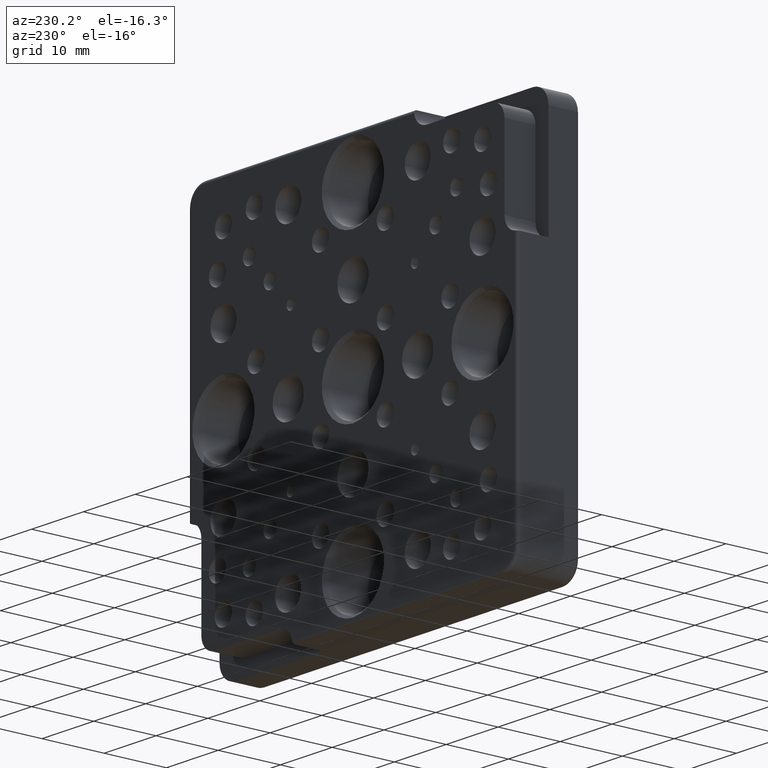
[diagram: clean part render]
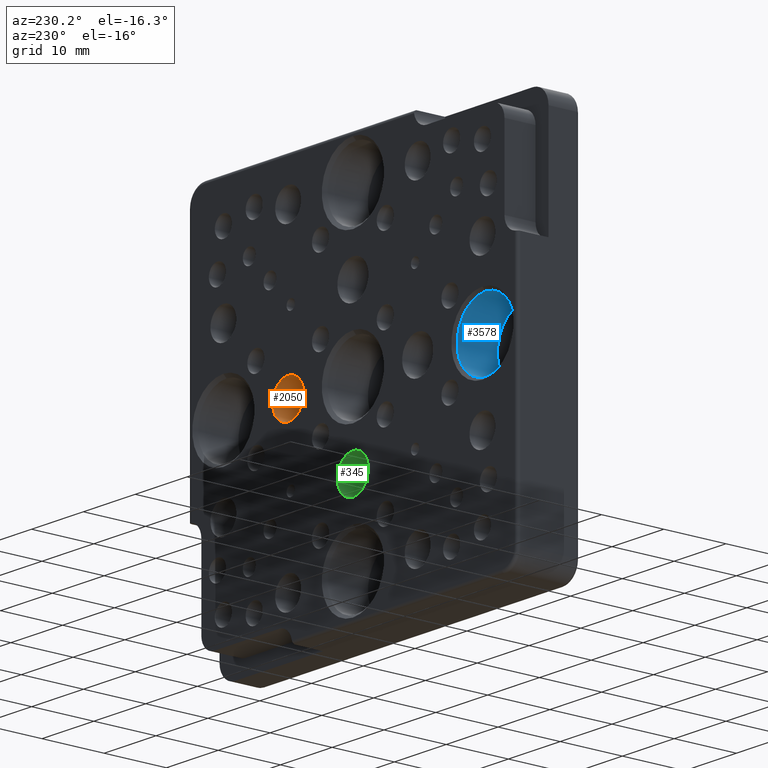
[diagram: same view with three faces highlighted in distinct colors, each labeled with its STEP entity id]
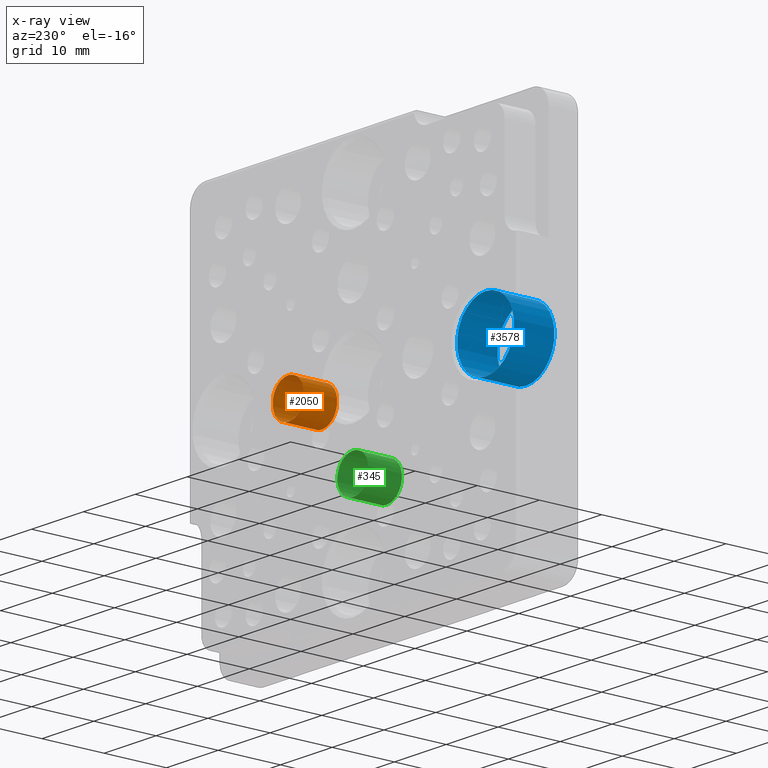
[diagram: x-ray of the same camera — body ghosted, the three highlighted faces saturated]
A machine part, auxiliary view with three faces highlighted in distinct colors.
The next image is the same camera in x-ray (body ghosted, the three faces saturated) — at least one of them is partly hidden behind the body in this view.
Their STEP definitions:

[orange] entity #2050 — the highlighted cylindrical surface (bore or boss wall) has radius 3 mm, axis along (-0, -1, -0).
#34 = AXIS2_PLACEMENT_3D ( 'NONE', #1773, #2163, #99 ) ;
#99 = DIRECTION ( 'NONE',  ( 0.000000000000000000, 0.000000000000000000, -1.000000000000000000 ) ) ;
#466 = CARTESIAN_POINT ( 'NONE',  ( 12.50000000000000355, 4.599999999999999645, 0.000000000000000000 ) ) ;
#479 = FACE_OUTER_BOUND ( 'NONE', #3254, .T. ) ;
#580 = DIRECTION ( 'NONE',  ( 0.000000000000000000, 0.000000000000000000, -1.000000000000000000 ) ) ;
#821 = EDGE_CURVE ( 'NONE', #3263, #3263, #4001, .T. ) ;
#1164 = AXIS2_PLACEMENT_3D ( 'NONE', #1911, #2218, #3260 ) ;
#1717 = VERTEX_POINT ( 'NONE', #2440 ) ;
#1735 = EDGE_LOOP ( 'NONE', ( #4113 ) ) ;
#1773 = CARTESIAN_POINT ( 'NONE',  ( 12.50000000000000355, 0.000000000000000000, 0.000000000000000000 ) ) ;
#1911 = CARTESIAN_POINT ( 'NONE',  ( 12.50000000000000355, 10.00000000000000000, 0.000000000000000000 ) ) ;
#2050 = ADVANCED_FACE ( 'NONE', ( #2811, #479 ), #3163, .F. ) ;
#2163 = DIRECTION ( 'NONE',  ( -0.000000000000000000, -1.000000000000000000, -0.000000000000000000 ) ) ;
#2218 = DIRECTION ( 'NONE',  ( -0.000000000000000000, -1.000000000000000000, -0.000000000000000000 ) ) ;
#2440 = CARTESIAN_POINT ( 'NONE',  ( 12.50000000000000355, 4.599999999999999645, -3.000000000000012879 ) ) ;
#2555 = CARTESIAN_POINT ( 'NONE',  ( 12.50000000000000355, 10.00000000000000000, -3.000000000000012879 ) ) ;
#2811 = FACE_OUTER_BOUND ( 'NONE', #1735, .T. ) ;
#3036 = CIRCLE ( 'NONE', #3841, 3.000000000000012879 ) ;
#3163 = CYLINDRICAL_SURFACE ( 'NONE', #34, 3.000000000000012879 ) ;
#3171 = DIRECTION ( 'NONE',  ( -0.000000000000000000, -1.000000000000000000, -0.000000000000000000 ) ) ;
#3254 = EDGE_LOOP ( 'NONE', ( #4344 ) ) ;
#3260 = DIRECTION ( 'NONE',  ( 0.000000000000000000, 0.000000000000000000, -1.000000000000000000 ) ) ;
#3263 = VERTEX_POINT ( 'NONE', #2555 ) ;
#3777 = EDGE_CURVE ( 'NONE', #1717, #1717, #3036, .T. ) ;
#3841 = AXIS2_PLACEMENT_3D ( 'NONE', #466, #3171, #580 ) ;
#4001 = CIRCLE ( 'NONE', #1164, 3.000000000000012879 ) ;
#4113 = ORIENTED_EDGE ( 'NONE', *, *, #821, .F. ) ;
#4344 = ORIENTED_EDGE ( 'NONE', *, *, #3777, .T. ) ;

[blue] entity #3578 — the highlighted cylindrical surface (bore or boss wall) has radius 5.5 mm, axis along (-0, 1, -0).
#256 = CARTESIAN_POINT ( 'NONE',  ( -24.99999999999999289, 3.000000000000000000, 5.500000000000011546 ) ) ;
#340 = DIRECTION ( 'NONE',  ( 0.000000000000000000, 0.000000000000000000, 1.000000000000000000 ) ) ;
#468 = AXIS2_PLACEMENT_3D ( 'NONE', #601, #1949, #3313 ) ;
#536 = CIRCLE ( 'NONE', #3083, 5.500000000000011546 ) ;
#601 = CARTESIAN_POINT ( 'NONE',  ( -24.99999999999999289, 3.000000000000000000, 0.000000000000000000 ) ) ;
#680 = FACE_OUTER_BOUND ( 'NONE', #4121, .T. ) ;
#788 = DIRECTION ( 'NONE',  ( 0.000000000000000000, 0.000000000000000000, 1.000000000000000000 ) ) ;
#1076 = FACE_OUTER_BOUND ( 'NONE', #3389, .T. ) ;
#1448 = DIRECTION ( 'NONE',  ( 0.000000000000000000, 1.000000000000000000, 0.000000000000000000 ) ) ;
#1810 = ORIENTED_EDGE ( 'NONE', *, *, #1820, .F. ) ;
#1820 = EDGE_CURVE ( 'NONE', #2943, #2943, #3001, .T. ) ;
#1949 = DIRECTION ( 'NONE',  ( -0.000000000000000000, 1.000000000000000000, -0.000000000000000000 ) ) ;
#2064 = EDGE_CURVE ( 'NONE', #3006, #3006, #536, .T. ) ;
#2099 = DIRECTION ( 'NONE',  ( -0.000000000000000000, 1.000000000000000000, -0.000000000000000000 ) ) ;
#2425 = CARTESIAN_POINT ( 'NONE',  ( -24.99999999999999289, 9.499999999999985789, 0.000000000000000000 ) ) ;
#2433 = CARTESIAN_POINT ( 'NONE',  ( -24.99999999999999289, 10.00000000000000000, 0.000000000000000000 ) ) ;
#2943 = VERTEX_POINT ( 'NONE', #256 ) ;
#3001 = CIRCLE ( 'NONE', #468, 5.500000000000011546 ) ;
#3006 = VERTEX_POINT ( 'NONE', #3638 ) ;
#3083 = AXIS2_PLACEMENT_3D ( 'NONE', #2425, #1448, #788 ) ;
#3097 = CYLINDRICAL_SURFACE ( 'NONE', #3979, 5.500000000000011546 ) ;
#3313 = DIRECTION ( 'NONE',  ( 0.000000000000000000, 0.000000000000000000, 1.000000000000000000 ) ) ;
#3389 = EDGE_LOOP ( 'NONE', ( #1810 ) ) ;
#3477 = ORIENTED_EDGE ( 'NONE', *, *, #2064, .T. ) ;
#3578 = ADVANCED_FACE ( 'NONE', ( #680, #1076 ), #3097, .F. ) ;
#3638 = CARTESIAN_POINT ( 'NONE',  ( -24.99999999999999289, 9.499999999999985789, 5.500000000000011546 ) ) ;
#3979 = AXIS2_PLACEMENT_3D ( 'NONE', #2433, #2099, #340 ) ;
#4121 = EDGE_LOOP ( 'NONE', ( #3477 ) ) ;

[green] entity #345 — the highlighted cylindrical surface (bore or boss wall) has radius 3 mm, axis along (-0, -1, -0).
#345 = ADVANCED_FACE ( 'NONE', ( #3432, #2835 ), #1703, .F. ) ;
#878 = EDGE_CURVE ( 'NONE', #1191, #1191, #1355, .T. ) ;
#1191 = VERTEX_POINT ( 'NONE', #2533 ) ;
#1250 = DIRECTION ( 'NONE',  ( 0.000000000000000000, 0.000000000000000000, -1.000000000000000000 ) ) ;
#1268 = DIRECTION ( 'NONE',  ( -0.000000000000000000, -1.000000000000000000, -0.000000000000000000 ) ) ;
#1355 = CIRCLE ( 'NONE', #2277, 3.000000000000012879 ) ;
#1428 = CARTESIAN_POINT ( 'NONE',  ( 3.469446951953614189E-15, 0.000000000000000000, -12.50000000000000000 ) ) ;
#1626 = CARTESIAN_POINT ( 'NONE',  ( 3.469446951953614189E-15, 4.599999999999999645, -12.50000000000000000 ) ) ;
#1633 = CARTESIAN_POINT ( 'NONE',  ( 3.469446951953614189E-15, 10.00000000000000000, -12.50000000000000000 ) ) ;
#1703 = CYLINDRICAL_SURFACE ( 'NONE', #3387, 3.000000000000012879 ) ;
#1755 = EDGE_LOOP ( 'NONE', ( #4369 ) ) ;
#1992 = DIRECTION ( 'NONE',  ( -0.000000000000000000, -1.000000000000000000, -0.000000000000000000 ) ) ;
#2007 = EDGE_CURVE ( 'NONE', #2319, #2319, #2525, .T. ) ;
#2166 = DIRECTION ( 'NONE',  ( -0.000000000000000000, -1.000000000000000000, -0.000000000000000000 ) ) ;
#2277 = AXIS2_PLACEMENT_3D ( 'NONE', #1633, #1268, #1250 ) ;
#2319 = VERTEX_POINT ( 'NONE', #4350 ) ;
#2525 = CIRCLE ( 'NONE', #3731, 3.000000000000012879 ) ;
#2533 = CARTESIAN_POINT ( 'NONE',  ( 3.469446951953614189E-15, 10.00000000000000000, -15.50000000000001421 ) ) ;
#2637 = EDGE_LOOP ( 'NONE', ( #3810 ) ) ;
#2835 = FACE_OUTER_BOUND ( 'NONE', #1755, .T. ) ;
#3358 = DIRECTION ( 'NONE',  ( 0.000000000000000000, 0.000000000000000000, -1.000000000000000000 ) ) ;
#3387 = AXIS2_PLACEMENT_3D ( 'NONE', #1428, #2166, #3505 ) ;
#3432 = FACE_OUTER_BOUND ( 'NONE', #2637, .T. ) ;
#3505 = DIRECTION ( 'NONE',  ( 0.000000000000000000, 0.000000000000000000, -1.000000000000000000 ) ) ;
#3731 = AXIS2_PLACEMENT_3D ( 'NONE', #1626, #1992, #3358 ) ;
#3810 = ORIENTED_EDGE ( 'NONE', *, *, #878, .F. ) ;
#4350 = CARTESIAN_POINT ( 'NONE',  ( 3.469446951953614189E-15, 4.599999999999999645, -15.50000000000001421 ) ) ;
#4369 = ORIENTED_EDGE ( 'NONE', *, *, #2007, .T. ) ;